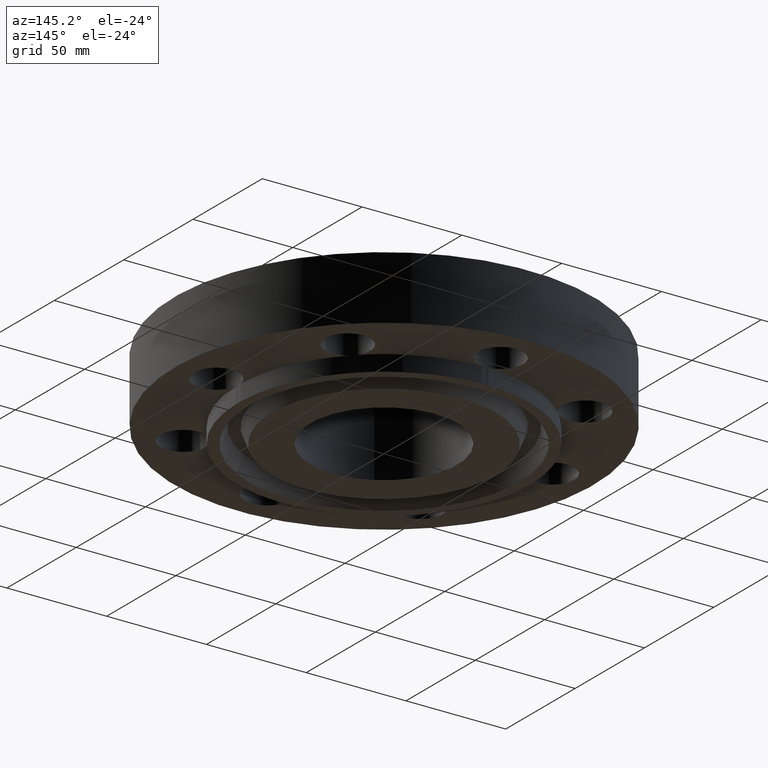
[diagram: clean part render]
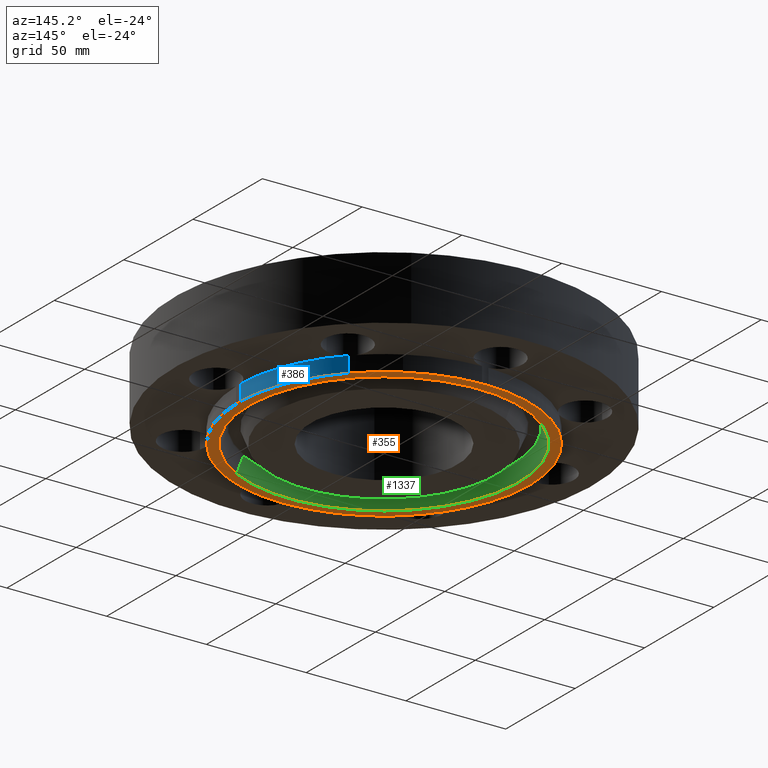
[diagram: same view with three faces highlighted in distinct colors, each labeled with its STEP entity id]
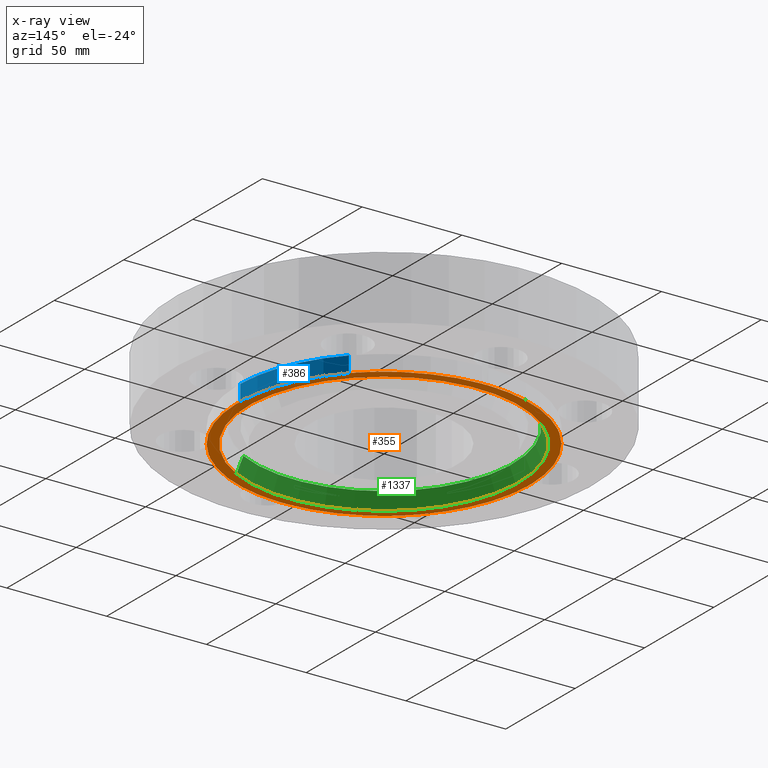
[diagram: x-ray of the same camera — body ghosted, the three highlighted faces saturated]
A machine part, auxiliary view with three faces highlighted in distinct colors.
The next image is the same camera in x-ray (body ghosted, the three faces saturated) — at least one of them is partly hidden behind the body in this view.
Their STEP definitions:

[orange] entity #355 — the highlighted planar face has unit normal (0, 0, -1).
#123=AXIS2_PLACEMENT_3D('Plane Axis2P3D',#120,#121,#122) ;
#193=AXIS2_PLACEMENT_3D('Circle Axis2P3D',#191,#192,$) ;
#202=AXIS2_PLACEMENT_3D('Circle Axis2P3D',#200,#201,$) ;
#209=AXIS2_PLACEMENT_3D('Circle Axis2P3D',#207,#208,$) ;
#216=AXIS2_PLACEMENT_3D('Circle Axis2P3D',#214,#215,$) ;
#223=AXIS2_PLACEMENT_3D('Circle Axis2P3D',#221,#222,$) ;
#230=AXIS2_PLACEMENT_3D('Circle Axis2P3D',#228,#229,$) ;
#237=AXIS2_PLACEMENT_3D('Circle Axis2P3D',#235,#236,$) ;
#244=AXIS2_PLACEMENT_3D('Circle Axis2P3D',#242,#243,$) ;
#251=AXIS2_PLACEMENT_3D('Circle Axis2P3D',#249,#250,$) ;
#258=AXIS2_PLACEMENT_3D('Circle Axis2P3D',#256,#257,$) ;
#265=AXIS2_PLACEMENT_3D('Circle Axis2P3D',#263,#264,$) ;
#272=AXIS2_PLACEMENT_3D('Circle Axis2P3D',#270,#271,$) ;
#279=AXIS2_PLACEMENT_3D('Circle Axis2P3D',#277,#278,$) ;
#286=AXIS2_PLACEMENT_3D('Circle Axis2P3D',#284,#285,$) ;
#293=AXIS2_PLACEMENT_3D('Circle Axis2P3D',#291,#292,$) ;
#300=AXIS2_PLACEMENT_3D('Circle Axis2P3D',#298,#299,$) ;
#307=AXIS2_PLACEMENT_3D('Circle Axis2P3D',#305,#306,$) ;
#314=AXIS2_PLACEMENT_3D('Circle Axis2P3D',#312,#313,$) ;
#339=AXIS2_PLACEMENT_3D('Circle Axis2P3D',#337,#338,$) ;
#348=AXIS2_PLACEMENT_3D('Circle Axis2P3D',#346,#347,$) ;
#120=CARTESIAN_POINT('Axis2P3D Location',(0.,1.45000000001,-0.313000000001)) ;
#191=CARTESIAN_POINT('Axis2P3D Location',(0.,0.,-0.313000000001)) ;
#195=CARTESIAN_POINT('Vertex',(2.07605138692,1.98887798493,-0.313000000001)) ;
#197=CARTESIAN_POINT('Vertex',(2.87433912388,0.0616409036851,-0.313000000001)) ;
#200=CARTESIAN_POINT('Axis2P3D Location',(3.31000000001,0.,-0.313000000001)) ;
#204=CARTESIAN_POINT('Vertex',(2.87433912388,-0.0616409036851,-0.313000000001)) ;
#207=CARTESIAN_POINT('Axis2P3D Location',(0.,0.,-0.313000000001)) ;
#211=CARTESIAN_POINT('Vertex',(2.07605138692,-1.98887798493,-0.313000000001)) ;
#214=CARTESIAN_POINT('Axis2P3D Location',(2.34052344574,-2.34052344574,-0.313000000001)) ;
#218=CARTESIAN_POINT('Vertex',(1.98887798493,-2.07605138692,-0.313000000001)) ;
#221=CARTESIAN_POINT('Axis2P3D Location',(0.,0.,-0.313000000001)) ;
#225=CARTESIAN_POINT('Vertex',(0.0616409036851,-2.87433912388,-0.313000000001)) ;
#228=CARTESIAN_POINT('Axis2P3D Location',(4.02128024667E-016,-3.31000000001,-0.313000000001)) ;
#232=CARTESIAN_POINT('Vertex',(-0.0616409036851,-2.87433912388,-0.313000000001)) ;
#235=CARTESIAN_POINT('Axis2P3D Location',(0.,0.,-0.313000000001)) ;
#239=CARTESIAN_POINT('Vertex',(-1.37834842349,-2.52304986544,-0.313000000001)) ;
#242=CARTESIAN_POINT('Axis2P3D Location',(0.,0.,-0.313000000001)) ;
#246=CARTESIAN_POINT('Vertex',(-1.98887798493,-2.07605138692,-0.313000000001)) ;
#249=CARTESIAN_POINT('Axis2P3D Location',(-2.34052344574,-2.34052344574,-0.313000000001)) ;
#253=CARTESIAN_POINT('Vertex',(-2.07605138692,-1.98887798493,-0.313000000001)) ;
#256=CARTESIAN_POINT('Axis2P3D Location',(0.,0.,-0.313000000001)) ;
#260=CARTESIAN_POINT('Vertex',(-2.87433912388,-0.0616409036851,-0.313000000001)) ;
#263=CARTESIAN_POINT('Axis2P3D Location',(-3.31000000001,-5.59482469102E-016,-0.313000000001)) ;
#267=CARTESIAN_POINT('Vertex',(-2.87433912388,0.0616409036851,-0.313000000001)) ;
#270=CARTESIAN_POINT('Axis2P3D Location',(0.,0.,-0.313000000001)) ;
#274=CARTESIAN_POINT('Vertex',(-2.07605138692,1.98887798493,-0.313000000001)) ;
#277=CARTESIAN_POINT('Axis2P3D Location',(-2.34052344574,2.34052344574,-0.313000000001)) ;
#281=CARTESIAN_POINT('Vertex',(-1.98887798493,2.07605138692,-0.313000000001)) ;
#284=CARTESIAN_POINT('Axis2P3D Location',(0.,0.,-0.313000000001)) ;
#288=CARTESIAN_POINT('Vertex',(-0.0616409036851,2.87433912388,-0.313000000001)) ;
#291=CARTESIAN_POINT('Axis2P3D Location',(-3.49676543189E-017,3.31000000001,-0.313000000001)) ;
#295=CARTESIAN_POINT('Vertex',(0.0616409036851,2.87433912388,-0.313000000001)) ;
#298=CARTESIAN_POINT('Axis2P3D Location',(0.,0.,-0.313000000001)) ;
#302=CARTESIAN_POINT('Vertex',(1.37834842349,2.52304986544,-0.313000000001)) ;
#305=CARTESIAN_POINT('Axis2P3D Location',(0.,0.,-0.313000000001)) ;
#309=CARTESIAN_POINT('Vertex',(1.98887798493,2.07605138692,-0.313000000001)) ;
#312=CARTESIAN_POINT('Axis2P3D Location',(2.34052344574,2.34052344574,-0.313000000001)) ;
#337=CARTESIAN_POINT('Axis2P3D Location',(-2.79741234551E-016,0.,-0.313000000001)) ;
#341=CARTESIAN_POINT('Vertex',(1.28102503916,-2.34490060538,-0.313000000001)) ;
#343=CARTESIAN_POINT('Vertex',(-1.28102503916,2.34490060538,-0.313000000001)) ;
#346=CARTESIAN_POINT('Axis2P3D Location',(0.,5.59482469102E-016,-0.313000000001)) ;
#121=DIRECTION('Axis2P3D Direction',(0.,0.,-0.0393700787402)) ;
#122=DIRECTION('Axis2P3D XDirection',(0.0393700787402,0.,0.)) ;
#192=DIRECTION('Axis2P3D Direction',(0.,0.,-0.0393700787402)) ;
#201=DIRECTION('Axis2P3D Direction',(0.,0.,-0.0393700787402)) ;
#208=DIRECTION('Axis2P3D Direction',(0.,0.,-0.0393700787402)) ;
#215=DIRECTION('Axis2P3D Direction',(0.,0.,-0.0393700787402)) ;
#222=DIRECTION('Axis2P3D Direction',(0.,0.,-0.0393700787402)) ;
#229=DIRECTION('Axis2P3D Direction',(0.,0.,-0.0393700787402)) ;
#236=DIRECTION('Axis2P3D Direction',(0.,0.,-0.0393700787402)) ;
#243=DIRECTION('Axis2P3D Direction',(0.,0.,-0.0393700787402)) ;
#250=DIRECTION('Axis2P3D Direction',(0.,0.,-0.0393700787402)) ;
#257=DIRECTION('Axis2P3D Direction',(0.,0.,-0.0393700787402)) ;
#264=DIRECTION('Axis2P3D Direction',(0.,0.,-0.0393700787402)) ;
#271=DIRECTION('Axis2P3D Direction',(0.,0.,-0.0393700787402)) ;
#278=DIRECTION('Axis2P3D Direction',(0.,0.,-0.0393700787402)) ;
#285=DIRECTION('Axis2P3D Direction',(0.,0.,-0.0393700787402)) ;
#292=DIRECTION('Axis2P3D Direction',(0.,0.,-0.0393700787402)) ;
#299=DIRECTION('Axis2P3D Direction',(0.,0.,-0.0393700787402)) ;
#306=DIRECTION('Axis2P3D Direction',(0.,0.,-0.0393700787402)) ;
#313=DIRECTION('Axis2P3D Direction',(0.,0.,-0.0393700787402)) ;
#338=DIRECTION('Axis2P3D Direction',(0.,0.,-0.0393700787402)) ;
#347=DIRECTION('Axis2P3D Direction',(0.,0.,-0.0393700787402)) ;
#318=ORIENTED_EDGE('',*,*,#199,.T.) ;
#319=ORIENTED_EDGE('',*,*,#206,.F.) ;
#320=ORIENTED_EDGE('',*,*,#213,.T.) ;
#321=ORIENTED_EDGE('',*,*,#220,.F.) ;
#322=ORIENTED_EDGE('',*,*,#227,.T.) ;
#323=ORIENTED_EDGE('',*,*,#234,.F.) ;
#324=ORIENTED_EDGE('',*,*,#241,.T.) ;
#325=ORIENTED_EDGE('',*,*,#248,.T.) ;
#326=ORIENTED_EDGE('',*,*,#255,.F.) ;
#327=ORIENTED_EDGE('',*,*,#262,.T.) ;
#328=ORIENTED_EDGE('',*,*,#269,.F.) ;
#329=ORIENTED_EDGE('',*,*,#276,.T.) ;
#330=ORIENTED_EDGE('',*,*,#283,.F.) ;
#331=ORIENTED_EDGE('',*,*,#290,.T.) ;
#332=ORIENTED_EDGE('',*,*,#297,.F.) ;
#333=ORIENTED_EDGE('',*,*,#304,.T.) ;
#334=ORIENTED_EDGE('',*,*,#311,.T.) ;
#335=ORIENTED_EDGE('',*,*,#316,.F.) ;
#352=ORIENTED_EDGE('',*,*,#345,.F.) ;
#353=ORIENTED_EDGE('',*,*,#350,.F.) ;
#354=FACE_BOUND('',#351,.T.) ;
#355=ADVANCED_FACE('PartBody',(#336,#354),#124,.T.) ;
#194=CIRCLE('generated circle',#193,2.87500000001) ;
#203=CIRCLE('generated circle',#202,0.440000000002) ;
#210=CIRCLE('generated circle',#209,2.87500000001) ;
#217=CIRCLE('generated circle',#216,0.440000000002) ;
#224=CIRCLE('generated circle',#223,2.87500000001) ;
#231=CIRCLE('generated circle',#230,0.440000000002) ;
#238=CIRCLE('generated circle',#237,2.87500000001) ;
#245=CIRCLE('generated circle',#244,2.87500000001) ;
#252=CIRCLE('generated circle',#251,0.440000000002) ;
#259=CIRCLE('generated circle',#258,2.87500000001) ;
#266=CIRCLE('generated circle',#265,0.440000000002) ;
#273=CIRCLE('generated circle',#272,2.87500000001) ;
#280=CIRCLE('generated circle',#279,0.440000000002) ;
#287=CIRCLE('generated circle',#286,2.87500000001) ;
#294=CIRCLE('generated circle',#293,0.440000000002) ;
#301=CIRCLE('generated circle',#300,2.87500000001) ;
#308=CIRCLE('generated circle',#307,2.87500000001) ;
#315=CIRCLE('generated circle',#314,0.440000000002) ;
#340=CIRCLE('generated circle',#339,2.67200000001) ;
#349=CIRCLE('generated circle',#348,2.67200000001) ;
#199=EDGE_CURVE('',#196,#198,#194,.T.) ;
#206=EDGE_CURVE('',#205,#198,#203,.T.) ;
#213=EDGE_CURVE('',#205,#212,#210,.T.) ;
#220=EDGE_CURVE('',#219,#212,#217,.T.) ;
#227=EDGE_CURVE('',#219,#226,#224,.T.) ;
#234=EDGE_CURVE('',#233,#226,#231,.T.) ;
#241=EDGE_CURVE('',#233,#240,#238,.T.) ;
#248=EDGE_CURVE('',#240,#247,#245,.T.) ;
#255=EDGE_CURVE('',#254,#247,#252,.T.) ;
#262=EDGE_CURVE('',#254,#261,#259,.T.) ;
#269=EDGE_CURVE('',#268,#261,#266,.T.) ;
#276=EDGE_CURVE('',#268,#275,#273,.T.) ;
#283=EDGE_CURVE('',#282,#275,#280,.T.) ;
#290=EDGE_CURVE('',#282,#289,#287,.T.) ;
#297=EDGE_CURVE('',#296,#289,#294,.T.) ;
#304=EDGE_CURVE('',#296,#303,#301,.T.) ;
#311=EDGE_CURVE('',#303,#310,#308,.T.) ;
#316=EDGE_CURVE('',#196,#310,#315,.T.) ;
#345=EDGE_CURVE('',#342,#344,#340,.T.) ;
#350=EDGE_CURVE('',#344,#342,#349,.T.) ;
#317=EDGE_LOOP('',(#318,#319,#320,#321,#322,#323,#324,#325,#326,#327,#328,#329,#330,#331,#332,#333,#334,#335)) ;
#351=EDGE_LOOP('',(#352,#353)) ;
#336=FACE_OUTER_BOUND('',#317,.T.) ;
#124=PLANE('',#123) ;
#196=VERTEX_POINT('',#195) ;
#198=VERTEX_POINT('',#197) ;
#205=VERTEX_POINT('',#204) ;
#212=VERTEX_POINT('',#211) ;
#219=VERTEX_POINT('',#218) ;
#226=VERTEX_POINT('',#225) ;
#233=VERTEX_POINT('',#232) ;
#240=VERTEX_POINT('',#239) ;
#247=VERTEX_POINT('',#246) ;
#254=VERTEX_POINT('',#253) ;
#261=VERTEX_POINT('',#260) ;
#268=VERTEX_POINT('',#267) ;
#275=VERTEX_POINT('',#274) ;
#282=VERTEX_POINT('',#281) ;
#289=VERTEX_POINT('',#288) ;
#296=VERTEX_POINT('',#295) ;
#303=VERTEX_POINT('',#302) ;
#310=VERTEX_POINT('',#309) ;
#342=VERTEX_POINT('',#341) ;
#344=VERTEX_POINT('',#343) ;

[blue] entity #386 — the highlighted cylindrical surface (partial cylindrical patch) has radius 73.025 mm, axis along (0, 0, -1).
#193=AXIS2_PLACEMENT_3D('Circle Axis2P3D',#191,#192,$) ;
#359=AXIS2_PLACEMENT_3D('Cylinder Axis2P3D',#356,#357,#358) ;
#363=AXIS2_PLACEMENT_3D('Circle Axis2P3D',#361,#362,$) ;
#191=CARTESIAN_POINT('Axis2P3D Location',(0.,0.,-0.313000000001)) ;
#195=CARTESIAN_POINT('Vertex',(2.07605138692,1.98887798493,-0.313000000001)) ;
#197=CARTESIAN_POINT('Vertex',(2.87433912388,0.0616409036851,-0.313000000001)) ;
#356=CARTESIAN_POINT('Axis2P3D Location',(0.,0.,0.748500000003)) ;
#361=CARTESIAN_POINT('Axis2P3D Location',(0.,0.,2.79741234551E-016)) ;
#365=CARTESIAN_POINT('Vertex',(2.07605138692,1.98887798493,2.79741234551E-016)) ;
#367=CARTESIAN_POINT('Vertex',(2.87433912388,0.0616409036851,2.79741234551E-016)) ;
#370=CARTESIAN_POINT('Line Origine',(2.87433912388,0.0616409036851,-0.156500000001)) ;
#375=CARTESIAN_POINT('Line Origine',(2.07605138692,1.98887798493,-0.156500000001)) ;
#192=DIRECTION('Axis2P3D Direction',(0.,0.,-0.0393700787402)) ;
#357=DIRECTION('Axis2P3D Direction',(0.,0.,-0.0393700787402)) ;
#358=DIRECTION('Axis2P3D XDirection',(0.0188750212049,0.0345504945626,0.)) ;
#362=DIRECTION('Axis2P3D Direction',(0.,0.,-0.0393700787402)) ;
#371=DIRECTION('Vector Direction',(0.,0.,-0.0393700787402)) ;
#376=DIRECTION('Vector Direction',(0.,0.,-0.0393700787402)) ;
#372=VECTOR('Line Direction',#371,0.0393700787402) ;
#377=VECTOR('Line Direction',#376,0.0393700787402) ;
#381=ORIENTED_EDGE('',*,*,#369,.T.) ;
#382=ORIENTED_EDGE('',*,*,#374,.T.) ;
#383=ORIENTED_EDGE('',*,*,#199,.F.) ;
#384=ORIENTED_EDGE('',*,*,#379,.F.) ;
#386=ADVANCED_FACE('PartBody',(#385),#360,.T.) ;
#194=CIRCLE('generated circle',#193,2.87500000001) ;
#364=CIRCLE('generated circle',#363,2.87500000001) ;
#360=CYLINDRICAL_SURFACE('generated cylinder',#359,2.87500000001) ;
#199=EDGE_CURVE('',#196,#198,#194,.T.) ;
#369=EDGE_CURVE('',#366,#368,#364,.T.) ;
#374=EDGE_CURVE('',#368,#198,#373,.T.) ;
#379=EDGE_CURVE('',#366,#196,#378,.T.) ;
#380=EDGE_LOOP('',(#381,#382,#383,#384)) ;
#385=FACE_OUTER_BOUND('',#380,.T.) ;
#373=LINE('Line',#370,#372) ;
#378=LINE('Line',#375,#377) ;
#196=VERTEX_POINT('',#195) ;
#198=VERTEX_POINT('',#197) ;
#366=VERTEX_POINT('',#365) ;
#368=VERTEX_POINT('',#367) ;

[green] entity #1337 — the highlighted conical surface has half-angle 23 deg.
#339=AXIS2_PLACEMENT_3D('Circle Axis2P3D',#337,#338,$) ;
#1298=AXIS2_PLACEMENT_3D('Cone Axis2P3D',#1295,#1296,#1297) ;
#1328=AXIS2_PLACEMENT_3D('Circle Axis2P3D',#1326,#1327,$) ;
#337=CARTESIAN_POINT('Axis2P3D Location',(-2.79741234551E-016,0.,-0.313000000001)) ;
#341=CARTESIAN_POINT('Vertex',(1.28102503916,-2.34490060538,-0.313000000001)) ;
#343=CARTESIAN_POINT('Vertex',(-1.28102503916,2.34490060538,-0.313000000001)) ;
#1295=CARTESIAN_POINT('Axis2P3D Location',(0.,0.,-0.0188873350169)) ;
#1300=CARTESIAN_POINT('Line Origine',(1.25109847736,-2.29012040146,-0.165943667509)) ;
#1304=CARTESIAN_POINT('Vertex',(1.22117191556,-2.23534019754,-0.0188873350169)) ;
#1311=CARTESIAN_POINT('Vertex',(-1.22117191556,2.23534019754,-0.0188873350169)) ;
#1314=CARTESIAN_POINT('Line Origine',(-1.25109847736,2.29012040146,-0.165943667509)) ;
#1326=CARTESIAN_POINT('Axis2P3D Location',(0.,0.,-0.0188873350169)) ;
#338=DIRECTION('Axis2P3D Direction',(0.,0.,-0.0393700787402)) ;
#1296=DIRECTION('Axis2P3D Direction',(-0.,-0.,-0.0393700787402)) ;
#1297=DIRECTION('Axis2P3D XDirection',(0.0188750212049,-0.0345504945626,0.)) ;
#1301=DIRECTION('Vector Direction',(0.00737505833565,-0.0134999537303,-0.0362403485611)) ;
#1315=DIRECTION('Vector Direction',(-0.00737505833565,0.0134999537303,-0.0362403485611)) ;
#1327=DIRECTION('Axis2P3D Direction',(0.,0.,-0.0393700787402)) ;
#1302=VECTOR('Line Direction',#1301,0.0393700787402) ;
#1316=VECTOR('Line Direction',#1315,0.0393700787402) ;
#1332=ORIENTED_EDGE('',*,*,#345,.T.) ;
#1333=ORIENTED_EDGE('',*,*,#1318,.T.) ;
#1334=ORIENTED_EDGE('',*,*,#1330,.T.) ;
#1335=ORIENTED_EDGE('',*,*,#1306,.F.) ;
#1337=ADVANCED_FACE('PartBody',(#1336),#1299,.F.) ;
#340=CIRCLE('generated circle',#339,2.67200000001) ;
#1329=CIRCLE('generated circle',#1328,2.5471565806) ;
#1299=CONICAL_SURFACE('Cone',#1298,2.5471565806,0.401425727959) ;
#345=EDGE_CURVE('',#342,#344,#340,.T.) ;
#1306=EDGE_CURVE('',#342,#1305,#1303,.F.) ;
#1318=EDGE_CURVE('',#344,#1312,#1317,.F.) ;
#1330=EDGE_CURVE('',#1312,#1305,#1329,.F.) ;
#1331=EDGE_LOOP('',(#1332,#1333,#1334,#1335)) ;
#1336=FACE_OUTER_BOUND('',#1331,.T.) ;
#1303=LINE('Line',#1300,#1302) ;
#1317=LINE('Line',#1314,#1316) ;
#342=VERTEX_POINT('',#341) ;
#344=VERTEX_POINT('',#343) ;
#1305=VERTEX_POINT('',#1304) ;
#1312=VERTEX_POINT('',#1311) ;